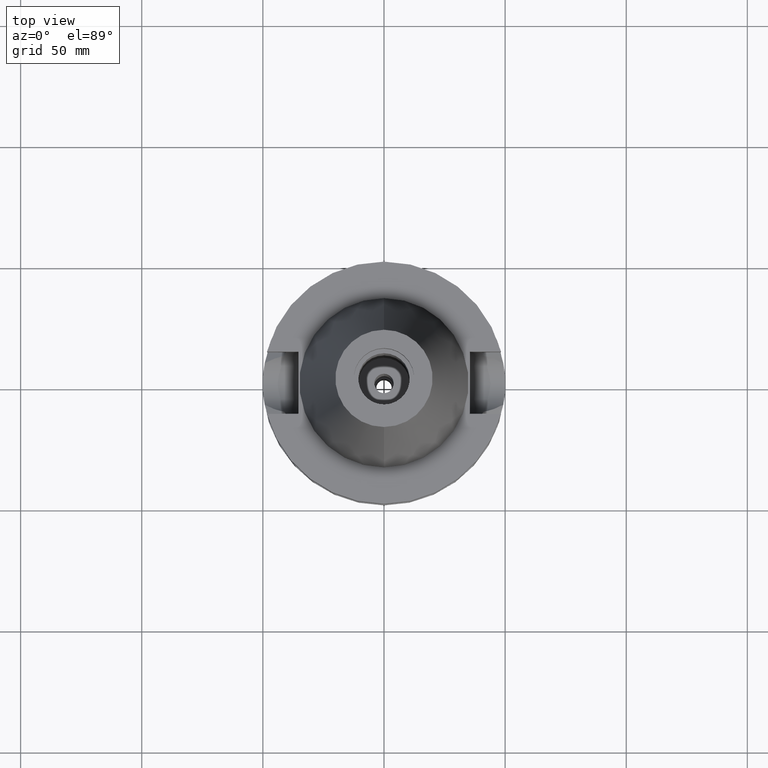
[diagram: clean part render]
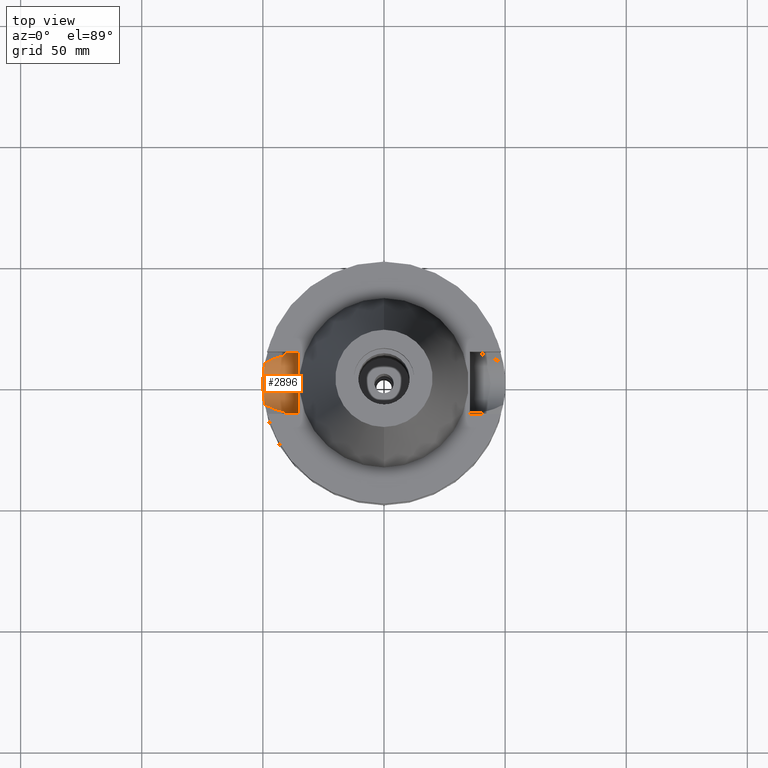
[diagram: same view with one face highlighted and labeled with its STEP entity id]
A machine part, top view. The second image highlights one B-rep face of the part: STEP entity #2896.
In plain terms, the highlighted cylindrical surface (edge-blend (fillet) strip) has radius 12.85 mm, axis along (-1, 0, 0).
Its self-contained STEP definition (entity closure, byte-faithful):
#28 = LINE ( 'NONE', #2501, #2526 ) ;
#56 = CARTESIAN_POINT ( 'NONE',  ( -49.47556776258102218, 7.223238670911087844, -31.77919332700185251 ) ) ;
#69 = CARTESIAN_POINT ( 'NONE',  ( -49.54064746251858509, 6.762057735808363113, -32.07703431498980251 ) ) ;
#86 = CARTESIAN_POINT ( 'NONE',  ( -49.55601938756712599, 6.648398653612062503, -32.14642309863533853 ) ) ;
#108 = CARTESIAN_POINT ( 'NONE',  ( -45.47909400017872628, -10.32808805806594954, -28.79556319328577274 ) ) ;
#129 = CARTESIAN_POINT ( 'NONE',  ( -49.86308249898093692, 3.775850016149790100, -33.45954281435815147 ) ) ;
#134 = AXIS2_PLACEMENT_3D ( 'NONE', #1726, #1494, #952 ) ;
#144 = CARTESIAN_POINT ( 'NONE',  ( -49.99187023690485887, 0.9036077933489059522, -33.96960422969863203 ) ) ;
#151 = VERTEX_POINT ( 'NONE', #296 ) ;
#155 = CARTESIAN_POINT ( 'NONE',  ( -45.33951899467980695, -10.38078243881031959, -28.72376466037220410 ) ) ;
#156 = CARTESIAN_POINT ( 'NONE',  ( -40.85052569294000335, 11.72538061688000077, -26.40718074535000426 ) ) ;
#163 = CARTESIAN_POINT ( 'NONE',  ( -49.55496529460678090, -6.656265981451417346, -32.14166343314814611 ) ) ;
#199 = CARTESIAN_POINT ( 'NONE',  ( -49.79673529072690030, -4.503806050135317207, -33.18492202724819151 ) ) ;
#222 = CARTESIAN_POINT ( 'NONE',  ( -40.61157134048480799, -12.52820429569616145, -24.00861743068358933 ) ) ;
#254 = CARTESIAN_POINT ( 'NONE',  ( -40.63720115041248704, -12.44498656811013859, -24.35265160711855970 ) ) ;
#271 = CARTESIAN_POINT ( 'NONE',  ( -40.51083188481999997, -12.84999999999999964, -21.14999999999999858 ) ) ;
#276 = CARTESIAN_POINT ( 'NONE',  ( -35.39999999999999858, -12.84999999999999964, -21.14999999999999858 ) ) ;
#296 = CARTESIAN_POINT ( 'NONE',  ( -49.26250064874000145, -8.556052234130000045, -30.73730776426999967 ) ) ;
#313 = CARTESIAN_POINT ( 'NONE',  ( -49.37885247721467152, 7.862144687137641696, -31.32188303343802360 ) ) ;
#337 = CARTESIAN_POINT ( 'NONE',  ( -40.51083188481999997, 12.84999999999999964, -21.14999999999999858 ) ) ;
#342 = VERTEX_POINT ( 'NONE', #2137 ) ;
#357 = DIRECTION ( 'NONE',  ( 1.000000000000000000, 0.0000000000000000000, 0.0000000000000000000 ) ) ;
#359 = B_SPLINE_CURVE_WITH_KNOTS ( 'NONE', 3,
 ( #382, #1110, #1895, #2350, #2861, #647, #1359, #616, #108, #1405, #2878, #155, #1158, #1850, #2145, #1624 ),
 .UNSPECIFIED., .F., .F.,
 ( 4, 2, 2, 1, 1, 1, 1, 2, 2, 4 ),
 ( 0.0000000000000000000, 0.2500000000000405231, 0.3750000000000595635, 0.4375000000000680012, 0.4687500000000722755, 0.4843750000000743294, 0.4921875000000746625, 0.4960937500000739964, 0.5000000000000732747, 1.000000000000000000 ),
 .UNSPECIFIED. ) ;
#361 = EDGE_CURVE ( 'NONE', #1563, #1470, #1332, .T. ) ;
#376 = CARTESIAN_POINT ( 'NONE',  ( -49.38319382062387319, -7.861146768888322534, -31.35746595722506314 ) ) ;
#382 = CARTESIAN_POINT ( 'NONE',  ( -49.26250064874000145, -8.556052234130000045, -30.73730776426999967 ) ) ;
#383 = CARTESIAN_POINT ( 'NONE',  ( -44.92492825679465085, 10.53397585264169045, -28.51064874759748236 ) ) ;
#409 = CARTESIAN_POINT ( 'NONE',  ( -49.99978277986036090, 0.1279040284556070273, -33.99951180099018444 ) ) ;
#410 = VECTOR ( 'NONE', #3098, 1000.000000000000000 ) ;
#427 = CARTESIAN_POINT ( 'NONE',  ( -49.79190313582737559, 4.556817176959103932, -33.16490932795942115 ) ) ;
#442 = CARTESIAN_POINT ( 'NONE',  ( -49.57410189267063316, -6.512428103251883371, -32.22769848447239838 ) ) ;
#452 = VERTEX_POINT ( 'NONE', #276 ) ;
#490 = CARTESIAN_POINT ( 'NONE',  ( -40.85052569294000335, -11.72538061688000077, -26.40718074535000426 ) ) ;
#496 = CARTESIAN_POINT ( 'NONE',  ( -40.74530552705318343, -12.08734373585977018, -25.53456320654999345 ) ) ;
#616 = CARTESIAN_POINT ( 'NONE',  ( -45.64079206896528973, -10.26622129514888115, -28.87873398512578405 ) ) ;
#640 = CARTESIAN_POINT ( 'NONE',  ( -49.55645080412764969, -6.645196272335867071, -32.14835934790125549 ) ) ;
#647 = CARTESIAN_POINT ( 'NONE',  ( -46.22821643532893177, -10.03208629407159513, -29.18077293846700115 ) ) ;
#648 = CARTESIAN_POINT ( 'NONE',  ( -45.44309914682702356, 10.34163194265442876, -28.77718097771949601 ) ) ;
#655 = CARTESIAN_POINT ( 'NONE',  ( -49.91487582327795991, 3.004850455334009407, -33.66796213067976140 ) ) ;
#670 = CARTESIAN_POINT ( 'NONE',  ( -49.80418093013229708, -4.420986045307178536, -33.21572998609222793 ) ) ;
#684 = FACE_OUTER_BOUND ( 'NONE', #1467, .T. ) ;
#693 = CARTESIAN_POINT ( 'NONE',  ( -49.97920013495804881, 1.472795261581377746, -33.92099889275289115 ) ) ;
#709 = CARTESIAN_POINT ( 'NONE',  ( -40.57496331174877469, 12.64632619882844189, -23.43376116601609382 ) ) ;
#728 = CARTESIAN_POINT ( 'NONE',  ( -35.39999999999999858, 12.84999999999999964, -21.14999999999999858 ) ) ;
#763 = DIRECTION ( 'NONE',  ( -1.000000000000000000, 3.440913946376999995E-14, 0.0000000000000000000 ) ) ;
#767 = CARTESIAN_POINT ( 'NONE',  ( -40.54025177940136615, -12.75862267497680236, -22.93154239031998998 ) ) ;
#791 = EDGE_CURVE ( 'NONE', #1470, #342, #1330, .T. ) ;
#850 = CARTESIAN_POINT ( 'NONE',  ( -49.55642839048189074, 6.645350892797392994, -32.14826596388333257 ) ) ;
#875 = CARTESIAN_POINT ( 'NONE',  ( -49.32369756960938645, 8.203703595818053529, -31.05175613999238848 ) ) ;
#907 = CARTESIAN_POINT ( 'NONE',  ( -40.73816994079598430, 12.11682134614811446, -25.53412886413605776 ) ) ;
#921 = CARTESIAN_POINT ( 'NONE',  ( -40.65436097481651245, 12.39000951530815087, -24.66364262345140546 ) ) ;
#924 = CARTESIAN_POINT ( 'NONE',  ( -49.78995452583072279, 4.578044775512789322, -33.15683700966729219 ) ) ;
#943 = CARTESIAN_POINT ( 'NONE',  ( -49.99918878542030143, 0.2915256914341953220, -33.99728939609629919 ) ) ;
#952 = DIRECTION ( 'NONE',  ( 0.0000000000000000000, 0.0000000000000000000, -1.000000000000000000 ) ) ;
#962 = CARTESIAN_POINT ( 'NONE',  ( -49.96639091844751590, 1.855009113443007118, -33.87135769994920054 ) ) ;
#979 = ORIENTED_EDGE ( 'NONE', *, *, #2192, .T. ) ;
#980 = CARTESIAN_POINT ( 'NONE',  ( -40.62483164124756030, -12.48524007483834097, -24.19334343394760722 ) ) ;
#1071 = CARTESIAN_POINT ( 'NONE',  ( -49.54899534430298047, 6.700559330189111762, -32.11474970747267577 ) ) ;
#1110 = CARTESIAN_POINT ( 'NONE',  ( -48.69467504387055357, -8.881908013788315515, -30.44650255178515152 ) ) ;
#1132 = CARTESIAN_POINT ( 'NONE',  ( -49.55404929939645342, -6.663081176413871987, -32.13753266290894572 ) ) ;
#1158 = CARTESIAN_POINT ( 'NONE',  ( -45.32631266877599785, -10.38573506967961890, -28.71697090882623016 ) ) ;
#1159 = CARTESIAN_POINT ( 'NONE',  ( -43.73415186149795630, 10.93837762508110423, -27.89751731192649231 ) ) ;
#1163 = CARTESIAN_POINT ( 'NONE',  ( -40.56599870368348348, 12.67508435575842363, -23.26602303909836778 ) ) ;
#1164 = EDGE_CURVE ( 'NONE', #2370, #1290, #2171, .T. ) ;
#1181 = CARTESIAN_POINT ( 'NONE',  ( -49.81871769258486182, -4.255133180699303352, -33.27576126217695673 ) ) ;
#1194 = CARTESIAN_POINT ( 'NONE',  ( -40.51083188481999997, 12.84999999999999964, -21.14999999999999858 ) ) ;
#1198 = CARTESIAN_POINT ( 'NONE',  ( -49.48018584253039620, -7.212056200023181596, -31.80433119422314903 ) ) ;
#1237 = CARTESIAN_POINT ( 'NONE',  ( -40.60093031197541080, -12.56261288210719407, -23.85260464679963022 ) ) ;
#1290 = VERTEX_POINT ( 'NONE', #2026 ) ;
#1320 = CARTESIAN_POINT ( 'NONE',  ( -49.50787092338885031, 6.997722633476060494, -31.92787014511069899 ) ) ;
#1330 = B_SPLINE_CURVE_WITH_KNOTS ( 'NONE', 3,
 ( #156, #2146, #2604, #1159, #1879, #1638, #383, #2114, #3112, #648, #3081, #2622, #2851, #2384 ),
 .UNSPECIFIED., .F., .F.,
 ( 4, 2, 2, 1, 1, 2, 2, 4 ),
 ( 0.0000000000000000000, 0.2500000000000041078, 0.3750000000000054956, 0.4375000000000059397, 0.4687500000000051070, 0.4843750000000055511, 0.5000000000000059952, 1.000000000000000000 ),
 .UNSPECIFIED. ) ;
#1332 = B_SPLINE_CURVE_WITH_KNOTS ( 'NONE', 3,
 ( #1194, #2882, #2406, #2435, #2422, #1163, #709, #3103, #1447, #3117, #2204, #921, #907, #1884 ),
 .UNSPECIFIED., .F., .F.,
 ( 4, 2, 2, 1, 1, 2, 2, 4 ),
 ( 0.0000000000000000000, 0.2500000000000048850, 0.3750000000000073830, 0.4375000000000096034, 0.4687500000000108247, 0.4843750000000114353, 0.5000000000000119904, 1.000000000000000000 ),
 .UNSPECIFIED. ) ;
#1359 = CARTESIAN_POINT ( 'NONE',  ( -45.96050103758220473, -10.14125019679253015, -29.04315062770325540 ) ) ;
#1380 = CARTESIAN_POINT ( 'NONE',  ( -49.66426015234304714, -5.786401574112261414, -32.62507869484648637 ) ) ;
#1397 = CARTESIAN_POINT ( 'NONE',  ( -40.85052569294000335, 11.72538061688000077, -26.40718074535000426 ) ) ;
#1405 = CARTESIAN_POINT ( 'NONE',  ( -45.39778406966591007, -10.35886397358827793, -28.75373743377903679 ) ) ;
#1414 = CARTESIAN_POINT ( 'NONE',  ( -49.79350631851475129, -4.539276377460400802, -33.17154855829696203 ) ) ;
#1429 = EDGE_CURVE ( 'NONE', #342, #151, #2016, .T. ) ;
#1431 = CARTESIAN_POINT ( 'NONE',  ( -49.59426852399970898, -6.357723775236163277, -32.31781328675833009 ) ) ;
#1447 = CARTESIAN_POINT ( 'NONE',  ( -40.59188688274389989, 12.59181081970429972, -23.71312563686031893 ) ) ;
#1450 = CARTESIAN_POINT ( 'NONE',  ( -49.61096464771917169, -6.225456153774261203, -32.39171795566796419 ) ) ;
#1467 = EDGE_LOOP ( 'NONE', ( #2522, #1648, #979, #2058, #2314, #3056, #1842, #2707 ) ) ;
#1470 = VERTEX_POINT ( 'NONE', #1397 ) ;
#1494 = DIRECTION ( 'NONE',  ( -1.000000000000000000, 0.0000000000000000000, 0.0000000000000000000 ) ) ;
#1504 = CARTESIAN_POINT ( 'NONE',  ( -40.60613923871428455, -12.54577469983268934, -23.92970515983149227 ) ) ;
#1563 = VERTEX_POINT ( 'NONE', #2457 ) ;
#1599 = EDGE_CURVE ( 'NONE', #452, #1290, #28, .T. ) ;
#1615 = CARTESIAN_POINT ( 'NONE',  ( -35.39999999999999858, 1.497743035356999952E-14, -21.14999999999999858 ) ) ;
#1617 = CARTESIAN_POINT ( 'NONE',  ( -49.84637315205708319, -3.922661578669445870, -33.38950660938314030 ) ) ;
#1624 = CARTESIAN_POINT ( 'NONE',  ( -40.85052569294000335, -11.72538061688000077, -26.40718074535000426 ) ) ;
#1630 = CARTESIAN_POINT ( 'NONE',  ( -49.56384662192532886, -6.589859603812237232, -32.18165515052068315 ) ) ;
#1638 = CARTESIAN_POINT ( 'NONE',  ( -44.65684952248578554, 10.62863375135258792, -28.37269483251213131 ) ) ;
#1647 = CARTESIAN_POINT ( 'NONE',  ( -49.90695299034076982, -3.064054277359328449, -33.63563523790568865 ) ) ;
#1648 = ORIENTED_EDGE ( 'NONE', *, *, #1599, .F. ) ;
#1664 = CARTESIAN_POINT ( 'NONE',  ( -49.79013702931201379, -4.576075037444222282, -33.15758772694066181 ) ) ;
#1682 = CARTESIAN_POINT ( 'NONE',  ( -49.75827387568327254, -4.921781671788669321, -33.02549376301170270 ) ) ;
#1726 = CARTESIAN_POINT ( 'NONE',  ( -35.39999999999999858, 1.497743035356999952E-14, -21.14999999999999858 ) ) ;
#1765 = CARTESIAN_POINT ( 'NONE',  ( -40.79434747814746487, -11.92110216159726477, -25.97065217273899052 ) ) ;
#1780 = CARTESIAN_POINT ( 'NONE',  ( -40.85052569294000335, -11.72538061688000077, -26.40718074535000426 ) ) ;
#1810 = CARTESIAN_POINT ( 'NONE',  ( -49.55310733095760867, 6.670070396024470050, -32.13329829201305188 ) ) ;
#1842 = ORIENTED_EDGE ( 'NONE', *, *, #1429, .T. ) ;
#1850 = CARTESIAN_POINT ( 'NONE',  ( -44.01750528114597216, -10.87577815182824104, -28.04367198245668291 ) ) ;
#1872 = CARTESIAN_POINT ( 'NONE',  ( -49.70802902555463731, 5.397483288269470769, -32.81309430129922333 ) ) ;
#1879 = CARTESIAN_POINT ( 'NONE',  ( -44.11099142721531052, 10.81602112487251510, -28.09167784345148888 ) ) ;
#1884 = CARTESIAN_POINT ( 'NONE',  ( -40.85052569294000335, 11.72538061688000077, -26.40718074535000426 ) ) ;
#1885 = CARTESIAN_POINT ( 'NONE',  ( -49.99935165417607408, -0.7784239461310452635, -33.99781837041157218 ) ) ;
#1895 = CARTESIAN_POINT ( 'NONE',  ( -48.08190109363025755, -9.200231254943236792, -30.13255970473753109 ) ) ;
#1904 = CARTESIAN_POINT ( 'NONE',  ( -49.60515397032558838, 6.281699427302075200, -32.36773838364350553 ) ) ;
#1921 = CARTESIAN_POINT ( 'NONE',  ( -49.99991625534445916, -0.01371456480066738683, -34.00001357600847030 ) ) ;
#1941 = CARTESIAN_POINT ( 'NONE',  ( -49.98151726923703819, -1.537017214779046848, -33.93129506473938761 ) ) ;
#2013 = CARTESIAN_POINT ( 'NONE',  ( -40.51083188481999997, -12.84999999999998899, -22.03311098679651536 ) ) ;
#2016 = B_SPLINE_CURVE_WITH_KNOTS ( 'NONE', 3,
 ( #2535, #875, #313, #2287, #56, #1320, #2073, #69, #1071, #1810, #2551, #86, #850, #1904, #3136, #1872, #2856, #3086, #2646, #2917, #2903, #924, #427, #2596, #129, #655, #962, #693, #144, #2629, #943, #409, #3119, #3157, #1921, #1885, #1941, #2885, #1647, #2356, #1617, #1181, #670, #199, #1414, #2168, #1664, #1682, #2869, #1380, #2663, #1450, #1431, #442, #1630, #2408, #640, #163, #1132, #1198, #376, #2393 ),
 .UNSPECIFIED., .F., .F.,
 ( 4, 2, 2, 1, 1, 1, 1, 2, 2, 2, 2, 1, 1, 1, 2, 2, 2, 2, 1, 1, 1, 2, 2, 2, 2, 1, 1, 1, 1, 2, 2, 2, 2, 1, 1, 1, 1, 2, 2, 4 ),
 ( 0.0000000000000000000, 0.06249999999999528155, 0.09374999999999336642, 0.1093749999999924089, 0.1171874999999919925, 0.1210937499999913819, 0.1230468749999914929, 0.1240234374999916733, 0.1249999999999918676, 0.1875000000000052458, 0.2187500000000119349, 0.2343750000000152101, 0.2421875000000168754, 0.2460937500000180411, 0.2480468750000185962, 0.2500000000000192069, 0.3750000000000407452, 0.4375000000000515143, 0.4687500000000568989, 0.4843750000000596190, 0.4921875000000610068, 0.4960937500000616174, 0.5000000000000622835, 0.6250000000000835998, 0.6875000000000942579, 0.7187500000000996980, 0.7343750000001024736, 0.7421875000001036948, 0.7460937500001045830, 0.7480468750001046940, 0.7500000000001049161, 0.8125000000001015854, 0.8437500000000998090, 0.8593750000000990319, 0.8671875000000984768, 0.8710937500000986988, 0.8730468750000984768, 0.8740234375000981437, 0.8750000000000976996, 1.000000000000000000 ),
 .UNSPECIFIED. ) ;
#2026 = CARTESIAN_POINT ( 'NONE',  ( -40.51083188481999997, -12.84999999999999964, -21.14999999999999858 ) ) ;
#2058 = ORIENTED_EDGE ( 'NONE', *, *, #2723, .F. ) ;
#2073 = CARTESIAN_POINT ( 'NONE',  ( -49.52345606504925257, 6.887109230611780930, -31.99909553118832051 ) ) ;
#2113 = LINE ( 'NONE', #337, #410 ) ;
#2114 = CARTESIAN_POINT ( 'NONE',  ( -45.22919873183380446, 10.42208955819433136, -28.66716561881001724 ) ) ;
#2137 = CARTESIAN_POINT ( 'NONE',  ( -49.26250064874000145, 8.556052234130000045, -30.73730776426999967 ) ) ;
#2145 = CARTESIAN_POINT ( 'NONE',  ( -42.52895822043483776, -11.33560085173454013, -27.27652808653451544 ) ) ;
#2146 = CARTESIAN_POINT ( 'NONE',  ( -41.73354651307817420, 11.52031807057187329, -26.86454306979819506 ) ) ;
#2168 = CARTESIAN_POINT ( 'NONE',  ( -49.79134522950766240, -4.562917809002818181, -33.16259509176710196 ) ) ;
#2171 = B_SPLINE_CURVE_WITH_KNOTS ( 'NONE', 3,
 ( #1780, #1765, #496, #2767, #2734, #254, #980, #222, #1504, #2491, #1237, #767, #2013, #271 ),
 .UNSPECIFIED., .F., .F.,
 ( 4, 2, 2, 1, 1, 2, 2, 4 ),
 ( 0.0000000000000000000, 0.2500000000000079381, 0.3750000000000107692, 0.4375000000000123235, 0.4687500000000121569, 0.4843750000000121569, 0.5000000000000121014, 1.000000000000000000 ),
 .UNSPECIFIED. ) ;
#2192 = EDGE_CURVE ( 'NONE', #452, #2515, #2580, .T. ) ;
#2204 = CARTESIAN_POINT ( 'NONE',  ( -40.59737185188235031, 12.57410792978981462, -23.79858982319187177 ) ) ;
#2215 = CYLINDRICAL_SURFACE ( 'NONE', #134, 12.85000000000000320 ) ;
#2287 = CARTESIAN_POINT ( 'NONE',  ( -49.45252181872645281, 7.379311468361950510, -31.67177590213552563 ) ) ;
#2314 = ORIENTED_EDGE ( 'NONE', *, *, #361, .T. ) ;
#2350 = CARTESIAN_POINT ( 'NONE',  ( -47.09531765021360172, -9.660621240251439090, -29.62625688324774131 ) ) ;
#2356 = CARTESIAN_POINT ( 'NONE',  ( -49.86764686229101784, -3.636664092688283390, -33.47624956157025622 ) ) ;
#2370 = VERTEX_POINT ( 'NONE', #490 ) ;
#2384 = CARTESIAN_POINT ( 'NONE',  ( -49.26250064874000145, 8.556052234130000045, -30.73730776426999967 ) ) ;
#2393 = CARTESIAN_POINT ( 'NONE',  ( -49.26250064874000145, -8.556052234130000045, -30.73730776426999967 ) ) ;
#2406 = CARTESIAN_POINT ( 'NONE',  ( -40.51818746066845733, 12.82722055570913255, -22.03689885935567716 ) ) ;
#2408 = CARTESIAN_POINT ( 'NONE',  ( -49.55867599778246557, -6.628592829110670159, -32.15838541675078233 ) ) ;
#2422 = CARTESIAN_POINT ( 'NONE',  ( -40.54944865802443843, 12.72805685033412182, -22.93054388460652504 ) ) ;
#2435 = CARTESIAN_POINT ( 'NONE',  ( -40.54025418821384363, 12.75731235969285571, -22.70688809813407261 ) ) ;
#2457 = CARTESIAN_POINT ( 'NONE',  ( -40.51083188481999997, 12.84999999999999964, -21.14999999999999858 ) ) ;
#2491 = CARTESIAN_POINT ( 'NONE',  ( -40.60257358959407270, -12.55730255709575616, -23.87715530986269385 ) ) ;
#2501 = CARTESIAN_POINT ( 'NONE',  ( -35.39999999999999858, -12.84999999999999964, -21.14999999999999858 ) ) ;
#2515 = VERTEX_POINT ( 'NONE', #728 ) ;
#2522 = ORIENTED_EDGE ( 'NONE', *, *, #1164, .T. ) ;
#2526 = VECTOR ( 'NONE', #763, 1000.000000000000000 ) ;
#2535 = CARTESIAN_POINT ( 'NONE',  ( -49.26250064874000145, 8.556052234130000045, -30.73730776426999967 ) ) ;
#2551 = CARTESIAN_POINT ( 'NONE',  ( -49.55485633504437715, 6.657059842448319387, -32.14118191440816474 ) ) ;
#2580 = CIRCLE ( 'NONE', #3141, 12.84999999999999964 ) ;
#2596 = CARTESIAN_POINT ( 'NONE',  ( -49.79275732135701560, 4.547483021888163002, -33.16844661963227026 ) ) ;
#2604 = CARTESIAN_POINT ( 'NONE',  ( -42.56483065773493024, 11.29548650405283006, -27.29433596178224875 ) ) ;
#2622 = CARTESIAN_POINT ( 'NONE',  ( -46.93592188459014380, 9.770482904913388111, -29.54493659084016599 ) ) ;
#2629 = CARTESIAN_POINT ( 'NONE',  ( -49.99656935717350592, 0.6200430169408678305, -33.98744614802564001 ) ) ;
#2646 = CARTESIAN_POINT ( 'NONE',  ( -49.76585878239698246, 4.834011011684118841, -33.05670933719265037 ) ) ;
#2663 = CARTESIAN_POINT ( 'NONE',  ( -49.64357081478887324, -5.961532526077800043, -32.53519818052944146 ) ) ;
#2674 = EDGE_CURVE ( 'NONE', #151, #2370, #359, .T. ) ;
#2707 = ORIENTED_EDGE ( 'NONE', *, *, #2674, .T. ) ;
#2723 = EDGE_CURVE ( 'NONE', #1563, #2515, #2113, .T. ) ;
#2734 = CARTESIAN_POINT ( 'NONE',  ( -40.66327821818576638, -12.35976375022870855, -24.67241565216504640 ) ) ;
#2767 = CARTESIAN_POINT ( 'NONE',  ( -40.68244699595920366, -12.29665972424316855, -24.88712495127480651 ) ) ;
#2824 = DIRECTION ( 'NONE',  ( 0.0000000000000000000, -1.000000000000000000, 0.0000000000000000000 ) ) ;
#2851 = CARTESIAN_POINT ( 'NONE',  ( -48.18081859817274903, 9.176792730699352418, -30.18333701011555803 ) ) ;
#2856 = CARTESIAN_POINT ( 'NONE',  ( -49.72668424281851429, 5.222831055614597595, -32.89222978347523707 ) ) ;
#2861 = CARTESIAN_POINT ( 'NONE',  ( -46.75521941606535847, -9.811229602135686179, -29.45159932168674288 ) ) ;
#2869 = CARTESIAN_POINT ( 'NONE',  ( -49.72318384352866616, -5.264673825854946365, -32.87839317326084654 ) ) ;
#2878 = CARTESIAN_POINT ( 'NONE',  ( -45.36283819313480592, -10.37201961131173533, -28.73576063128678726 ) ) ;
#2882 = CARTESIAN_POINT ( 'NONE',  ( -40.51083188482000708, 12.85000000000001918, -21.59155814776823235 ) ) ;
#2885 = CARTESIAN_POINT ( 'NONE',  ( -49.92883535248301996, -2.681505938570833081, -33.72308165343818587 ) ) ;
#2896 = ADVANCED_FACE ( 'NONE', ( #684 ), #2215, .F. ) ;
#2903 = CARTESIAN_POINT ( 'NONE',  ( -49.78701911217830656, 4.609908264064496386, -33.14467182167895487 ) ) ;
#2917 = CARTESIAN_POINT ( 'NONE',  ( -49.78008232305390379, 4.684409442196979079, -33.11588758437903834 ) ) ;
#3056 = ORIENTED_EDGE ( 'NONE', *, *, #791, .T. ) ;
#3081 = CARTESIAN_POINT ( 'NONE',  ( -45.48380702747349602, 10.32616084036787818, -28.79811728457523401 ) ) ;
#3086 = CARTESIAN_POINT ( 'NONE',  ( -49.75306724056277830, 4.963223254336877055, -33.00317556853293866 ) ) ;
#3098 = DIRECTION ( 'NONE',  ( 1.000000000000000000, 3.440913946376999995E-14, 0.0000000000000000000 ) ) ;
#3103 = CARTESIAN_POINT ( 'NONE',  ( -40.58662879532096923, 12.60876850764078938, -23.62934185159354783 ) ) ;
#3112 = CARTESIAN_POINT ( 'NONE',  ( -45.35778149649603819, 10.37385159590562189, -28.73330033496911895 ) ) ;
#3117 = CARTESIAN_POINT ( 'NONE',  ( -40.59544973979548388, 12.58031391754228423, -23.76897202841965395 ) ) ;
#3119 = CARTESIAN_POINT ( 'NONE',  ( -49.99988398040253657, 0.05792329647651964231, -33.99989059424434856 ) ) ;
#3136 = CARTESIAN_POINT ( 'NONE',  ( -49.64886371745975424, 5.925076878039036821, -32.55913415215689355 ) ) ;
#3141 = AXIS2_PLACEMENT_3D ( 'NONE', #1615, #357, #2824 ) ;
#3157 = CARTESIAN_POINT ( 'NONE',  ( -49.99991736554098054, 0.01130191161418062085, -34.00001617349635552 ) ) ;